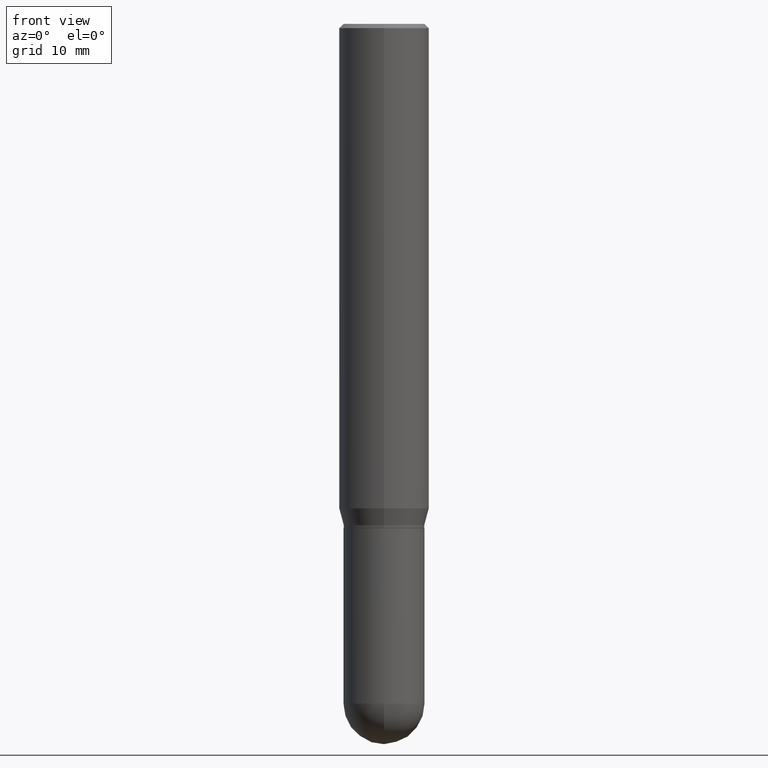
[diagram: clean part render]
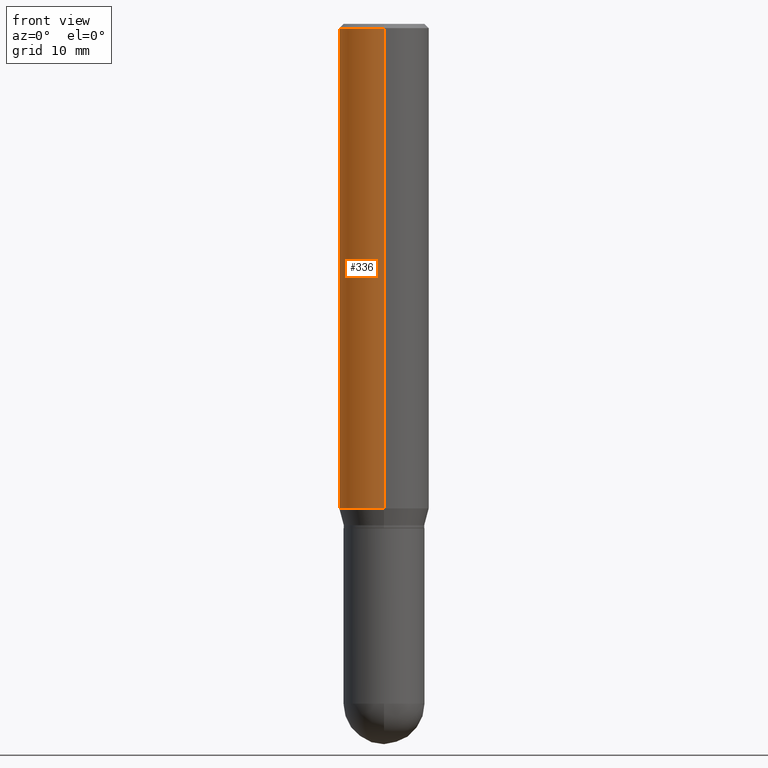
[diagram: same view with one face highlighted and labeled with its STEP entity id]
A machine part, front view. The second image highlights one B-rep face of the part: STEP entity #336.
In plain terms, the highlighted cylindrical surface (partial cylindrical patch) has radius 3.9688 mm, axis along (-0, 0, 1).
Its self-contained STEP definition (entity closure, byte-faithful):
#21 = VECTOR ( 'NONE', #397, 39.37007874015748143 ) ;
#28 = CARTESIAN_POINT ( 'NONE',  ( -1.091087918388437956E-15, -0.1562500000000058842, -1.681593404861546404 ) ) ;
#32 = DIRECTION ( 'NONE',  ( -2.445345981516174728E-29, 3.491657230759845150E-15, 1.000000000000000000 ) ) ;
#83 = CARTESIAN_POINT ( 'NONE',  ( 4.112077675122285455E-29, -5.871547771282887545E-15, -1.681593404861546848 ) ) ;
#90 = DIRECTION ( 'NONE',  ( -6.982962677686265133E-15, -1.000000000000000000, 3.496765431890256920E-15 ) ) ;
#92 = ORIENTED_EDGE ( 'NONE', *, *, #401, .T. ) ;
#95 = VERTEX_POINT ( 'NONE', #359 ) ;
#108 = EDGE_CURVE ( 'NONE', #136, #282, #284, .T. ) ;
#119 = AXIS2_PLACEMENT_3D ( 'NONE', #83, #477, #90 ) ;
#122 = CARTESIAN_POINT ( 'NONE',  ( 1.110223024625197561E-15, 0.1562499999999941436, -1.681593404861547514 ) ) ;
#124 = ORIENTED_EDGE ( 'NONE', *, *, #445, .F. ) ;
#136 = VERTEX_POINT ( 'NONE', #28 ) ;
#162 = VERTEX_POINT ( 'NONE', #122 ) ;
#166 = DIRECTION ( 'NONE',  ( -2.445345981516174448E-29, 3.491657230759844755E-15, 1.000000000000000000 ) ) ;
#168 = CARTESIAN_POINT ( 'NONE',  ( -1.091087918388478976E-15, -0.1562500000000000000, 5.455714423062258293E-16 ) ) ;
#174 = CIRCLE ( 'NONE', #490, 0.1562500000000000000 ) ;
#191 = DIRECTION ( 'NONE',  ( -6.982962677686265133E-15, -1.000000000000000000, 3.491657230759845150E-15 ) ) ;
#196 = ORIENTED_EDGE ( 'NONE', *, *, #366, .F. ) ;
#232 = FACE_OUTER_BOUND ( 'NONE', #450, .T. ) ;
#243 = CARTESIAN_POINT ( 'NONE',  ( 1.110223024625156343E-15, 0.1562500000000000000, -5.455714423062258293E-16 ) ) ;
#249 = DIRECTION ( 'NONE',  ( -2.445345981516174728E-29, 3.491657230759845150E-15, 1.000000000000000000 ) ) ;
#282 = VERTEX_POINT ( 'NONE', #422 ) ;
#284 = LINE ( 'NONE', #168, #437 ) ;
#319 = CARTESIAN_POINT ( 'NONE',  ( 0.000000000000000000, 0.000000000000000000, 0.000000000000000000 ) ) ;
#327 = CARTESIAN_POINT ( 'NONE',  ( 3.668018972274291047E-31, -5.237485846139809263E-17, -0.01500000000000011914 ) ) ;
#334 = ORIENTED_EDGE ( 'NONE', *, *, #108, .T. ) ;
#336 = ADVANCED_FACE ( 'NONE', ( #232 ), #392, .T. ) ;
#337 = AXIS2_PLACEMENT_3D ( 'NONE', #319, #32, #191 ) ;
#359 = CARTESIAN_POINT ( 'NONE',  ( 1.110223024625197561E-15, 0.1562499999999999445, -0.01500000000000066558 ) ) ;
#365 = DIRECTION ( 'NONE',  ( -6.982962677686265133E-15, -1.000000000000000000, 3.496765431890256920E-15 ) ) ;
#366 = EDGE_CURVE ( 'NONE', #162, #95, #430, .T. ) ;
#390 = CIRCLE ( 'NONE', #119, 0.1562500000000000000 ) ;
#392 = CYLINDRICAL_SURFACE ( 'NONE', #337, 0.1562500000000000000 ) ;
#397 = DIRECTION ( 'NONE',  ( -2.445345981516174448E-29, 3.491657230759844755E-15, 1.000000000000000000 ) ) ;
#401 = EDGE_CURVE ( 'NONE', #162, #136, #390, .T. ) ;
#422 = CARTESIAN_POINT ( 'NONE',  ( -1.091087918388478779E-15, -0.1562500000000000833, -0.01499999999999957270 ) ) ;
#430 = LINE ( 'NONE', #243, #21 ) ;
#437 = VECTOR ( 'NONE', #166, 39.37007874015748143 ) ;
#445 = EDGE_CURVE ( 'NONE', #95, #282, #174, .T. ) ;
#450 = EDGE_LOOP ( 'NONE', ( #196, #92, #334, #124 ) ) ;
#477 = DIRECTION ( 'NONE',  ( -2.445345981516174728E-29, 3.491657230759845150E-15, 1.000000000000000000 ) ) ;
#490 = AXIS2_PLACEMENT_3D ( 'NONE', #327, #249, #365 ) ;